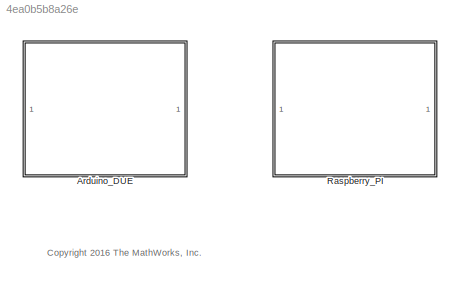
MODEL slx_4ea0b5b8a26e
KIND library
CONFIG AbsTol = auto
CONFIG FixedStep = 0.01
CONFIG MaxStep = auto
CONFIG MinStep = auto
CONFIG PreLoadFcn = addLibrariesInPath('arduino')\naddLibrariesInPath('rpi')
CONFIG RelTol = 1e-3
CONFIG SampleTimeConstraint = Unconstrained
CONFIG Solver = ode45
CONFIG SolverMode = Auto
CONFIG SolverName = ode45
CONFIG StartTime = 0.0
CONFIG StopTime = 10.0
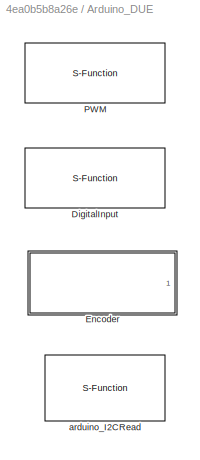
BLOCK [SubSystem] Arduino_DUE
  Ports = []
  RequestExecContextInheritance = off
  Variant = off
BLOCK [S-Function] Arduino_DUE/DigitalInput
  EnableBusSupport = off
  FunctionName = DigitalInput
  Parameters = pinNumber, isPullUp
  Ports = [0, 1]
  SFunctionDeploymentMode = off
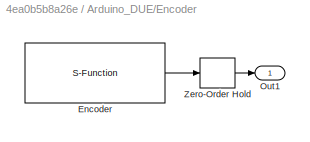
BLOCK [SubSystem] Arduino_DUE/Encoder
  Ports = [0, 1]
  RequestExecContextInheritance = off
  Variant = off
BLOCK [S-Function] Arduino_DUE/Encoder/Encoder
  EnableBusSupport = off
  FunctionName = Encoder
  Parameters = pinA,pinB
  Ports = [0, 1]
  SFunctionDeploymentMode = off
BLOCK [Outport] Arduino_DUE/Encoder/Out1
  IconDisplay = Port number
BLOCK [ZeroOrderHold] Arduino_DUE/Encoder/Zero-Order Hold
  SampleTime = -1
BLOCK [S-Function] Arduino_DUE/PWM
  EnableBusSupport = off
  FunctionName = PWM
  Parameters = pinNumber
  Ports = [1]
  SFunctionDeploymentMode = off
BLOCK [S-Function] Arduino_DUE/arduino_I2CRead
  EnableBusSupport = off
  FunctionName = arduino_I2CRead
  Parameters = uint8(buffer_size)
  Ports = [0, 1]
  SFunctionDeploymentMode = off
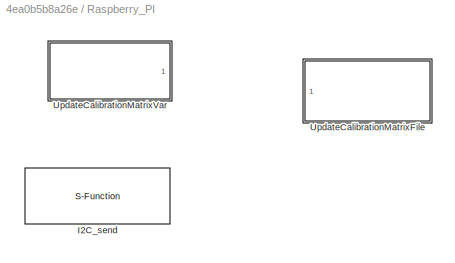
BLOCK [SubSystem] Raspberry_PI
  Ports = []
  RequestExecContextInheritance = off
  Variant = off
BLOCK [S-Function] Raspberry_PI/I2C_send
  EnableBusSupport = off
  FunctionName = rpi_I2CWrite
  Ports = [1]
  SFunctionDeploymentMode = off
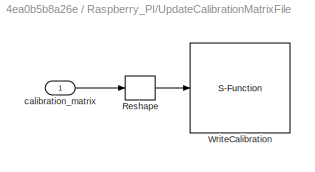
BLOCK [SubSystem] Raspberry_PI/UpdateCalibrationMatrixFile
  Ports = [1]
  RequestExecContextInheritance = off
  Variant = off
BLOCK [Reshape] Raspberry_PI/UpdateCalibrationMatrixFile/Reshape
  Ports = [1, 1]
BLOCK [S-Function] Raspberry_PI/UpdateCalibrationMatrixFile/WriteCalibration
  EnableBusSupport = off
  FunctionName = WriteCalibration
  Parameters = filename
  Ports = [1]
  SFunctionDeploymentMode = off
BLOCK [Inport] Raspberry_PI/UpdateCalibrationMatrixFile/calibration_matrix
  IconDisplay = Port number
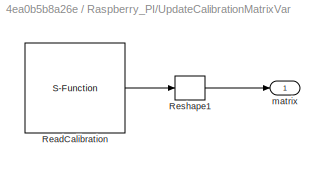
BLOCK [SubSystem] Raspberry_PI/UpdateCalibrationMatrixVar
  Ports = [0, 1]
  RequestExecContextInheritance = off
  Variant = off
BLOCK [S-Function] Raspberry_PI/UpdateCalibrationMatrixVar/ReadCalibration
  EnableBusSupport = off
  FunctionName = ReadCalibration
  Parameters = filename,size
  Ports = [0, 1]
  SFunctionDeploymentMode = off
BLOCK [Reshape] Raspberry_PI/UpdateCalibrationMatrixVar/Reshape1
  OutputDimensionality = Customize
  OutputDimensions = dim
  Ports = [1, 1]
BLOCK [Outport] Raspberry_PI/UpdateCalibrationMatrixVar/matrix
  IconDisplay = Port number
ANNOTATION (root): <copyright redacted>
LINE Arduino_DUE/Encoder/Encoder:1 -> Arduino_DUE/Encoder/Zero-Order Hold:1
LINE Arduino_DUE/Encoder/Zero-Order Hold:1 -> Arduino_DUE/Encoder/Out1:1
LINE Raspberry_PI/UpdateCalibrationMatrixFile/Reshape:1 -> Raspberry_PI/UpdateCalibrationMatrixFile/WriteCalibration:1
LINE Raspberry_PI/UpdateCalibrationMatrixFile/calibration_matrix:1 -> Raspberry_PI/UpdateCalibrationMatrixFile/Reshape:1
LINE Raspberry_PI/UpdateCalibrationMatrixVar/ReadCalibration:1 -> Raspberry_PI/UpdateCalibrationMatrixVar/Reshape1:1
LINE Raspberry_PI/UpdateCalibrationMatrixVar/Reshape1:1 -> Raspberry_PI/UpdateCalibrationMatrixVar/matrix:1
